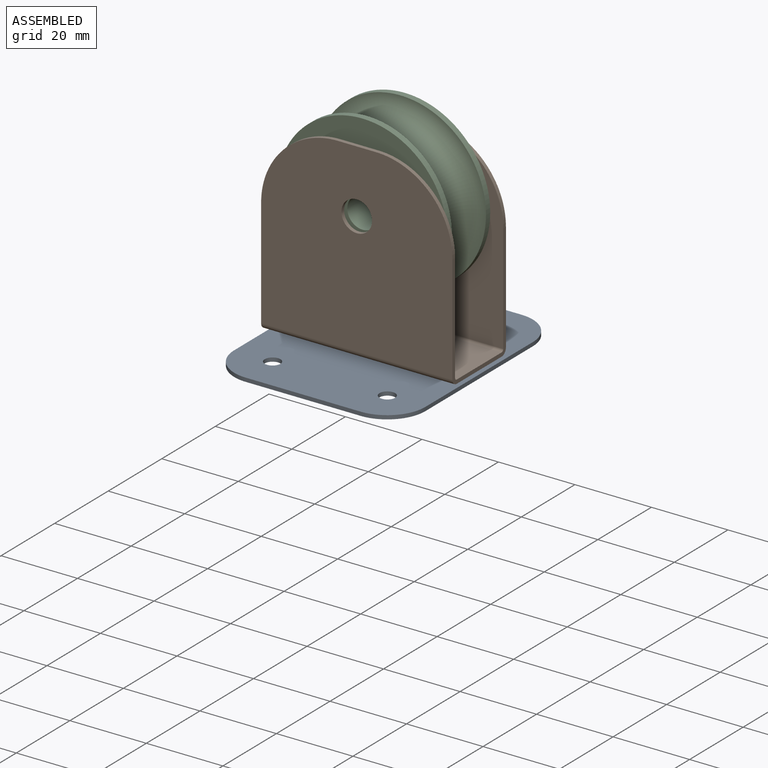
[diagram: assembled view]
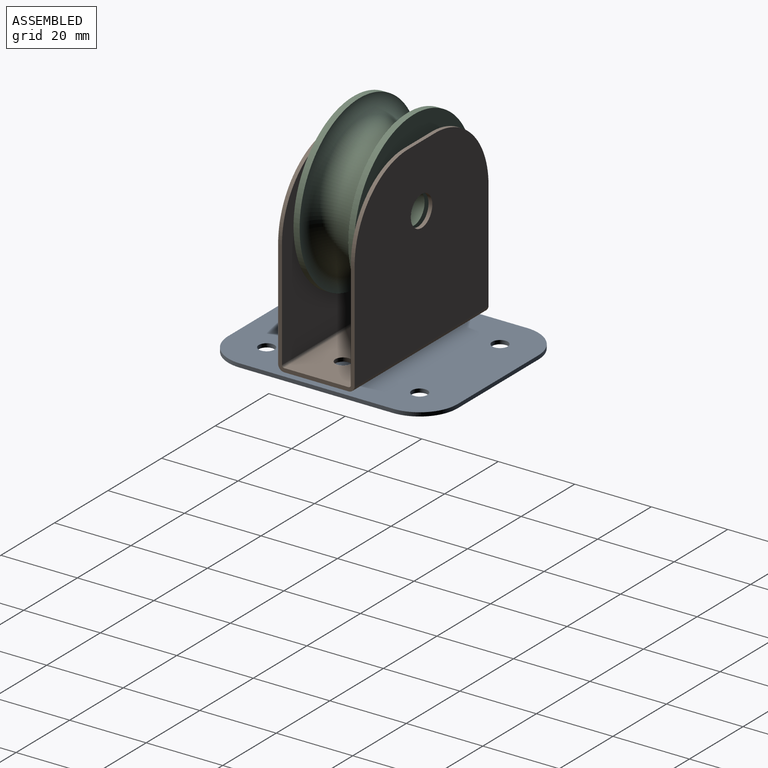
[diagram: assembled view, second angle]
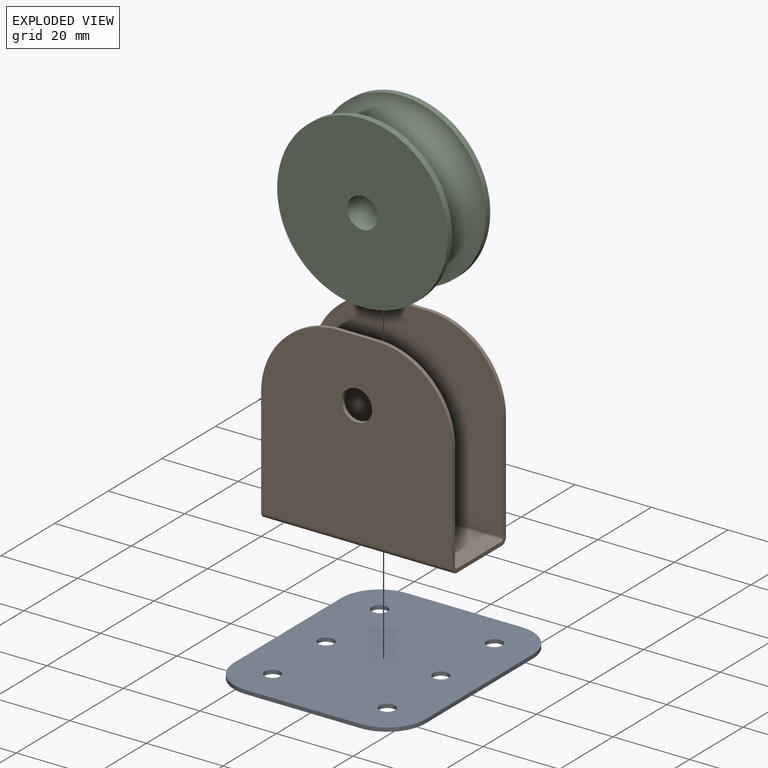
[diagram: exploded view]
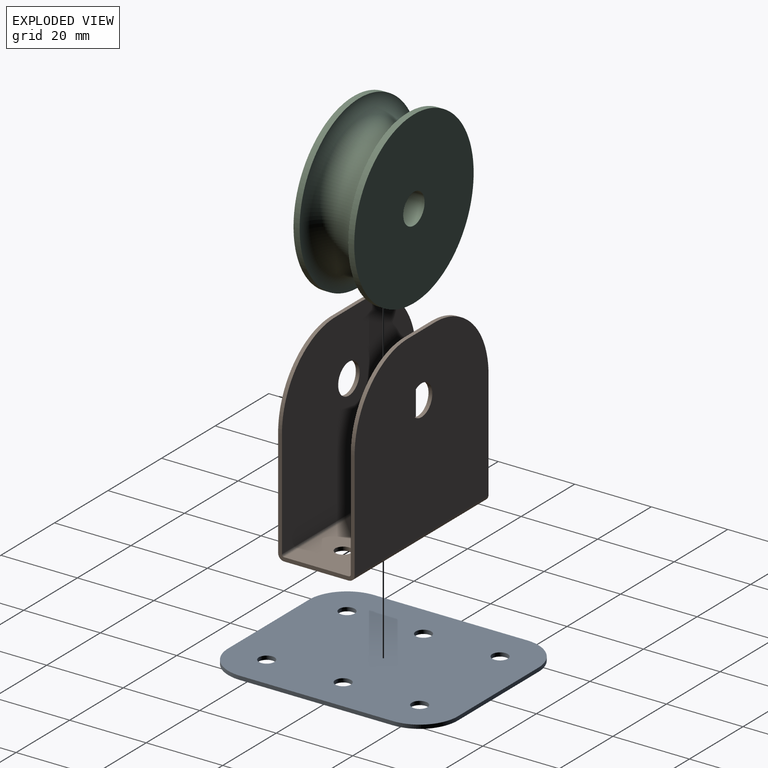
[diagram: exploded view, second angle]
FCSTD DOCUMENT  (FreeCAD 1.0R39319 (Git))
Label: ElevatorPulleyBracket
License: All rights reserved
LicenseURL: https://en.wikipedia.org/wiki/All_rights_reserved
objects: Sketcher::SketchObject×4, PartDesign::Body×3, App::Link×3, App::FeaturePython×3, PartDesign::Pocket×2, PartDesign::FeaturePython×1, PartDesign::Fillet×1, PartDesign::Pad×1, PartDesign::Revolution×1, Assembly::JointGroup×1, Assembly::AssemblyObject×1
note: 28 computed .brp shape members not serialized (recipe doc carries the construction recipe); baked Part::Feature solids carry a one-line shape summary decoded from their .brp

FEATURE [PartDesign::FeaturePython] BaseShape  # WARN: FeaturePython — macro-defined, semantics opaque (R4)
  Suppressed = false
  fillGaps = true
  flangeWidth = 5
  height = 50
  length = 50
  originLoc = 4
  radius = 0.61
  shapeType = 2
  thickness = 1
  width = 20
FEATURE [PartDesign::Fillet] Fillet
  Base = -> BaseShape [Edge21,Edge38,Edge44,Edge30]
  BaseFeature = -> BaseShape
  Radius = 20
  Refine = true
  SupportTransform = false
  Suppressed = false
  UseAllEdges = false
FEATURE [Sketcher::SketchObject] Sketch
  ArcFitTolerance = 1e-06
  AttachmentSupport = -> [Fillet]
  FullyConstrained = true
  MakeInternals = false
  MapMode = 5
  Placement = pos=(0,10,0) rot=(0,0.707107,0.707107;3.14159rad)
  sketch-geometry (1):
    g0: Circle CenterX=0 CenterY=33.5 CenterZ=0 NormalX=0 NormalY=0 NormalZ=1 AngleXU=0 Radius=4
  constraints (3):
    c: Diameter(g0) = 8
    c: PointOnObject(g0,g-2)
    c: DistanceY(g-1,g0) = 33.5
FEATURE [PartDesign::Pocket] Pocket
  BaseFeature = -> Fillet
  Direction = (0,-1,2e-16)
  Length = 5
  Length2 = 5
  Profile = -> Sketch
  ReferenceAxis = -> Sketch [N_Axis]
  Refine = true
  Suppressed = false
  Type = 1
FEATURE [Sketcher::SketchObject] Sketch001
  ArcFitTolerance = 1e-06
  AttachmentSupport = -> [Pocket]
  FullyConstrained = true
  MakeInternals = false
  MapMode = 5
  Placement = pos=(0,0,0) rot=(1,0,0;3.14159rad)
  sketch-geometry (2):
    g0: Circle CenterX=-15 CenterY=0 CenterZ=0 NormalX=0 NormalY=0 NormalZ=1 AngleXU=0 Radius=2.05
    g1: Circle CenterX=15 CenterY=0 CenterZ=0 NormalX=0 NormalY=0 NormalZ=1 AngleXU=0 Radius=2.05
  constraints (5):
    c: Diameter(g0) = 4.1
    c: PointOnObject(g0,g-1)
    c: DistanceX(g0,g-1) = 15
    c: Equal(g0,g1)
    c: Symmetric(g0,g1,g-1)
FEATURE [PartDesign::Pocket] Pocket001
  BaseFeature = -> Pocket
  Direction = (0,0,1)
  Length = 5
  Length2 = 5
  Profile = -> Sketch001
  ReferenceAxis = -> Sketch001 [N_Axis]
  Refine = true
  Suppressed = false
  Type = 1
FEATURE [PartDesign::Body] Body  label="Bracket"
  AllowCompound = false
  Group = -> [BaseShape,Fillet,Sketch,Pocket,Sketch001,Pocket001]
  Origin = -> Origin
  Tip = -> Pocket001
FEATURE [Sketcher::SketchObject] Sketch002
  ArcFitTolerance = 1e-06
  AttachmentSupport = -> [XY_Plane001]
  FullyConstrained = true
  MakeInternals = false
  MapMode = 5
  sketch-geometry (18):
    g0: LineSegment StartX=-25 StartY=20 StartZ=0 EndX=-25 EndY=-20 EndZ=0
    g1: LineSegment StartX=-15 StartY=-30 StartZ=0 EndX=15 EndY=-30 EndZ=0
    g2: LineSegment StartX=25 StartY=-20 StartZ=0 EndX=25 EndY=20 EndZ=0
    g3: LineSegment StartX=15 StartY=30 StartZ=0 EndX=-15 EndY=30 EndZ=0
    g4: ArcOfCircle CenterX=-15 CenterY=20 CenterZ=0 NormalX=0 NormalY=0 NormalZ=1 AngleXU=0 Radius=10 StartAngle=1.5708 EndAngle=3.14159
    g5: GeomPoint [constr] X=-25 Y=30 Z=0
    g6: ArcOfCircle CenterX=-15 CenterY=-20 CenterZ=0 NormalX=0 NormalY=0 NormalZ=1 AngleXU=0 Radius=10 StartAngle=3.14159 EndAngle=4.71239
    g7: GeomPoint [constr] X=-25 Y=-30 Z=0
    g8: ArcOfCircle CenterX=15 CenterY=-20 CenterZ=0 NormalX=0 NormalY=0 NormalZ=1 AngleXU=0 Radius=10 StartAngle=4.71239 EndAngle=6.28319
    g9: GeomPoint [constr] X=25 Y=-30 Z=0
    g10: ArcOfCircle CenterX=15 CenterY=20 CenterZ=0 NormalX=0 NormalY=0 NormalZ=1 AngleXU=0 Radius=10 StartAngle=0 EndAngle=1.5708
    g11: GeomPoint [constr] X=25 Y=30 Z=0
    g12: Circle CenterX=-15 CenterY=20 CenterZ=0 NormalX=0 NormalY=0 NormalZ=1 AngleXU=0 Radius=2.05
    g13: Circle CenterX=15 CenterY=20 CenterZ=0 NormalX=0 NormalY=0 NormalZ=1 AngleXU=0 Radius=2.05
    g14: Circle CenterX=-15 CenterY=-20 CenterZ=0 NormalX=0 NormalY=0 NormalZ=1 AngleXU=0 Radius=2.05
    g15: Circle CenterX=15 CenterY=-20 CenterZ=0 NormalX=0 NormalY=0 NormalZ=1 AngleXU=0 Radius=2.05
    g16: Circle CenterX=-15 CenterY=-4e-16 CenterZ=0 NormalX=0 NormalY=0 NormalZ=1 AngleXU=0 Radius=2.05
    g17: Circle CenterX=15 CenterY=4e-16 CenterZ=0 NormalX=0 NormalY=0 NormalZ=1 AngleXU=0 Radius=2.05
  constraints (39):
    c: Vertical(g0)
    c: Vertical(g2)
    c: Horizontal(g1)
    c: Horizontal(g3)
    c: DistanceX(g5,g11) = 50
    c: PointOnObject(g5,g0)
    c: PointOnObject(g5,g3)
    c: Tangent(g0,g4) = -1.5708
    c: Tangent(g3,g4) = -1.5708
    c: PointOnObject(g7,g0)
    c: PointOnObject(g7,g1)
    c: Tangent(g0,g6) = -1.5708
    c: Tangent(g1,g6) = -1.5708
    c: PointOnObject(g9,g1)
    c: PointOnObject(g9,g2)
    c: Tangent(g1,g8) = -1.5708
    c: Tangent(g2,g8) = -1.5708
    c: PointOnObject(g11,g2)
    c: PointOnObject(g11,g3)
    c: Tangent(g2,g10) = -1.5708
    c: Tangent(g3,g10) = -1.5708
    c: Equal(g4,g10)
    c: Equal(g4,g6)
    c: Equal(g4,g8)
    c: Radius(g4) = 10
    c: DistanceY(g1,g3) = 60
    c: Coincident(g12,g4)
    c: Coincident(g13,g10)
    c: Coincident(g14,g6)
    c: Coincident(g15,g8)
    c: Equal(g12,g13)
    c: Equal(g13,g16)
    c: Equal(g16,g17)
    c: Equal(g17,g14)
    c: Equal(g14,g15)
    c: Symmetric(g4,g6,g16)
    c: Symmetric(g10,g8,g17)
    c: Symmetric(g16,g17,g-1)
    c: Diameter(g16) = 4.1
FEATURE [PartDesign::Pad] Pad
  Direction = (0,0,1)
  Length = 1
  Length2 = 10
  Profile = -> Sketch002
  ReferenceAxis = -> Sketch002 [N_Axis]
  Refine = true
  Suppressed = false
  Type = 0
FEATURE [PartDesign::Body] Body001  label="Base"
  AllowCompound = false
  Group = -> [Sketch002,Pad]
  Origin = -> Origin001
  Tip = -> Pad
FEATURE [App::Link] Base  label="Base001"
  LinkedObject = -> Body001
FEATURE [App::FeaturePython] GroundedJoint  # Assembly grounded joint (typed FeaturePython)
  ObjectToGround = -> Base
FEATURE [App::Link] Bracket  label="Bracket001"
  LinkPlacement = pos=(0,4e-16,2) rot=(0,0,1;0rad)
  LinkedObject = -> Body
  Placement = pos=(0,4e-16,2) rot=(0,0,1;0rad)
FEATURE [App::FeaturePython] Joint  label="Fixed"  # Assembly joint (typed FeaturePython)
  Activated = true
  AngleMax = 0
  AngleMin = 0
  Detach1 = false
  Detach2 = false
  Distance = 0
  Distance2 = 0
  EnableAngleMax = false
  EnableAngleMin = false
  EnableLengthMax = false
  EnableLengthMin = false
  JointType = 0 (Fixed)
  LengthMax = 0
  LengthMin = 0
  Offset2 = pos=(0,0,1) rot=(0,0,1;0rad)
  Placement1 = pos=(15,4e-16,1) rot=(0,0,1;0rad)
  Placement2 = pos=(15,0,-1) rot=(1,0,0;3.14159rad)
  Reference1 = -> Assembly [Base.Edge33,Base.Edge33]
  Reference2 = -> Assembly [Bracket.Edge56,Bracket.Edge56]
FEATURE [Sketcher::SketchObject] Sketch003
  ArcFitTolerance = 1e-06
  AttachmentSupport = -> [XY_Plane003]
  FullyConstrained = true
  MakeInternals = false
  MapMode = 5
  sketch-geometry (6):
    g0: LineSegment StartX=-7.9375 StartY=22.2885 StartZ=0 EndX=-7.9375 EndY=3.96875 EndZ=0
    g1: LineSegment StartX=-7.9375 StartY=3.96875 StartZ=0 EndX=7.9375 EndY=3.96875 EndZ=0
    g2: LineSegment StartX=7.9375 StartY=3.96875 StartZ=0 EndX=7.9375 EndY=22.2885 EndZ=0
    g3: LineSegment StartX=7.9375 StartY=22.2885 StartZ=0 EndX=6.35 EndY=22.2885 EndZ=0
    g4: ArcOfCircle CenterX=0 CenterY=22.2885 CenterZ=0 NormalX=0 NormalY=0 NormalZ=1 AngleXU=0 Radius=6.35 StartAngle=3.14159 EndAngle=6.28319
    g5: LineSegment StartX=-6.35 StartY=22.2885 StartZ=0 EndX=-7.9375 EndY=22.2885 EndZ=0
  constraints (20):
    c: Coincident(g0,g1)
    c: Coincident(g1,g2)
    c: Coincident(g2,g3)
    c: Coincident(g5,g0)
    c: Vertical(g0)
    c: Vertical(g2)
    c: Horizontal(g1)
    c: Horizontal(g3)
    c: PointOnObject(g4,g5)
    c: DistanceY(g-1,g1) = 3.96875
    c: DistanceY(g-1,g0) = 22.2885
    c: DistanceX(g0,g2) = 15.875
    c: PointOnObject(g4,g3)
    c: Radius(g4) = 6.35
    c: PointOnObject(g4,g-2)
    c: Coincident(g3,g4)
    c: PointOnObject(g5,g4)
    c: Equal(g5,g3)
    c: Horizontal(g5)
    c: Equal(g0,g2)
FEATURE [PartDesign::Revolution] Revolution
  Angle = 360
  Angle2 = 60
  Axis = (1,0,0)
  Base = (0,0,0)
  Profile = -> Sketch003
  ReferenceAxis = -> Sketch003 [H_Axis]
  Refine = true
  Suppressed = false
  Type = 0
FEATURE [PartDesign::Body] Body002  label="Pulley"
  AllowCompound = false
  Group = -> [Sketch003,Revolution]
  Origin = -> Origin003
  Tip = -> Revolution
FEATURE [App::Link] Pulley  label="Pulley001"
  LinkPlacement = pos=(6e-16,0.0625,35.5) rot=(0,0,1;1.5708rad)
  LinkedObject = -> Body002
  Placement = pos=(6e-16,0.0625,35.5) rot=(0,0,1;1.5708rad)
FEATURE [App::FeaturePython] Joint001  label="Revolute"  # Assembly joint (typed FeaturePython)
  Activated = true
  AngleMax = 0
  AngleMin = 0
  Detach1 = false
  Detach2 = false
  Distance = 0
  Distance2 = 0
  EnableAngleMax = false
  EnableAngleMin = false
  EnableLengthMax = false
  EnableLengthMin = false
  JointType = 1 (Revolute)
  LengthMax = 0
  LengthMin = 0
  Offset2 = pos=(0,0,1) rot=(0,0,1;0rad)
  Placement1 = pos=(0,9,33.5) rot=(0,0.707107,0.707107;3.14159rad)
  Placement2 = pos=(8.9375,0,0) rot=(0.57735,0.57735,0.57735;2.0944rad)
  Reference1 = -> Assembly [Bracket.Edge47,Bracket.Edge47]
  Reference2 = -> Assembly [Pulley.Edge3,Pulley.Edge3]
FEATURE [Assembly::JointGroup] Joints
  Group = -> [GroundedJoint,Joint,Joint001]
FEATURE [Assembly::AssemblyObject] Assembly
  Group = -> [Joints,Base,GroundedJoint,Bracket,Joint,Pulley,Joint001]
  Origin = -> Origin002
  Type = Assembly
